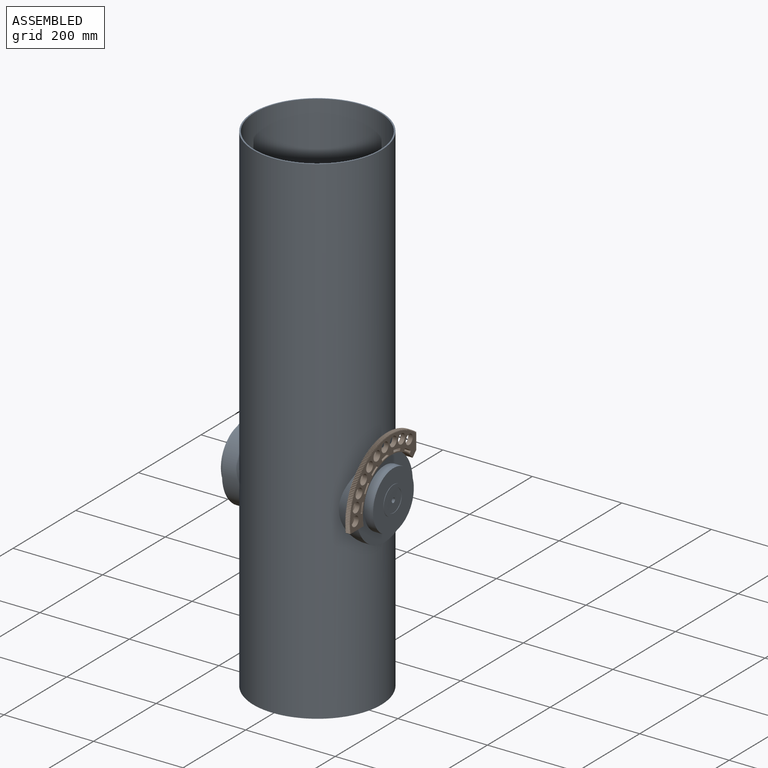
[diagram: assembled view]
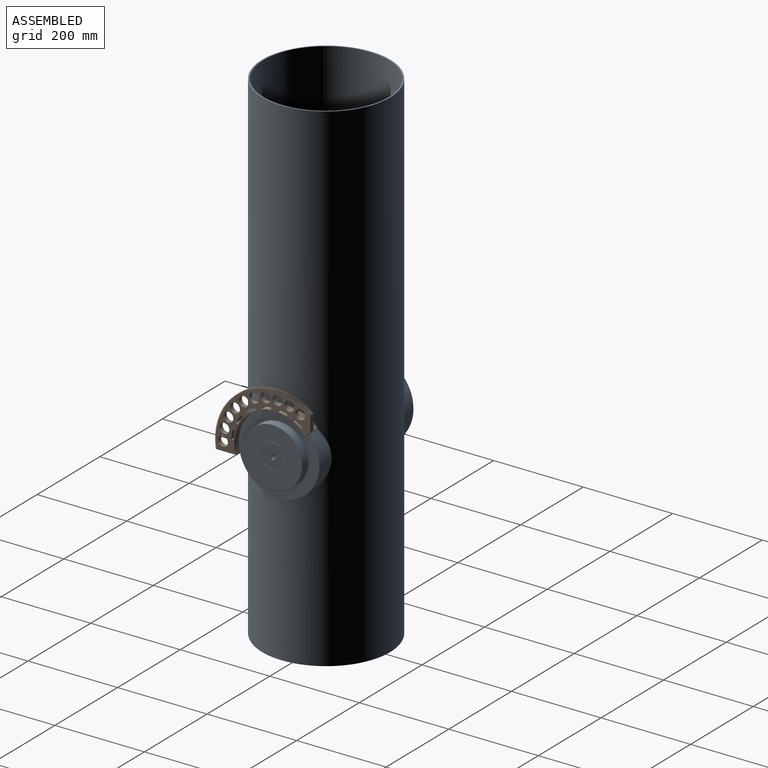
[diagram: assembled view, second angle]
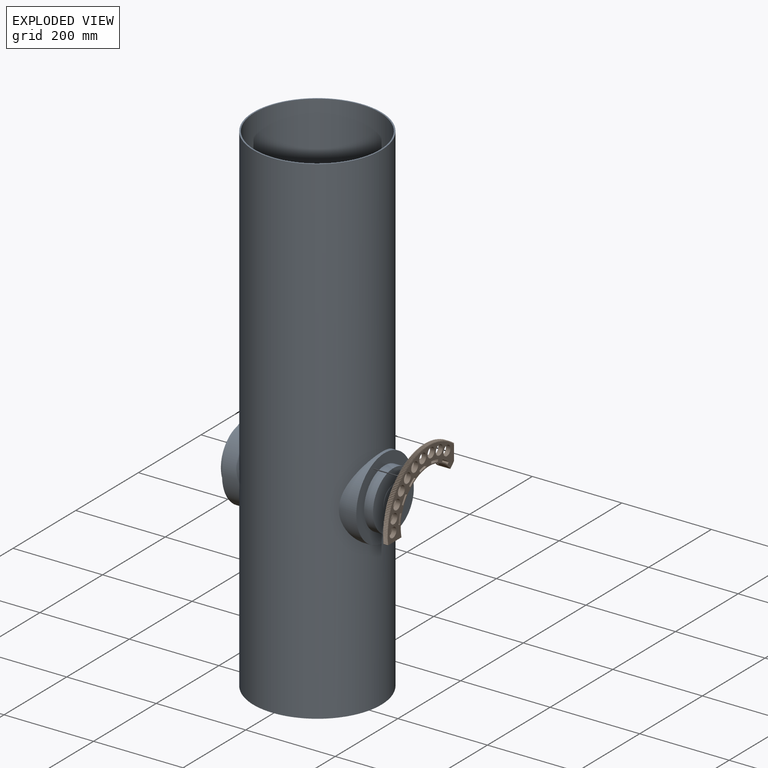
[diagram: exploded view]
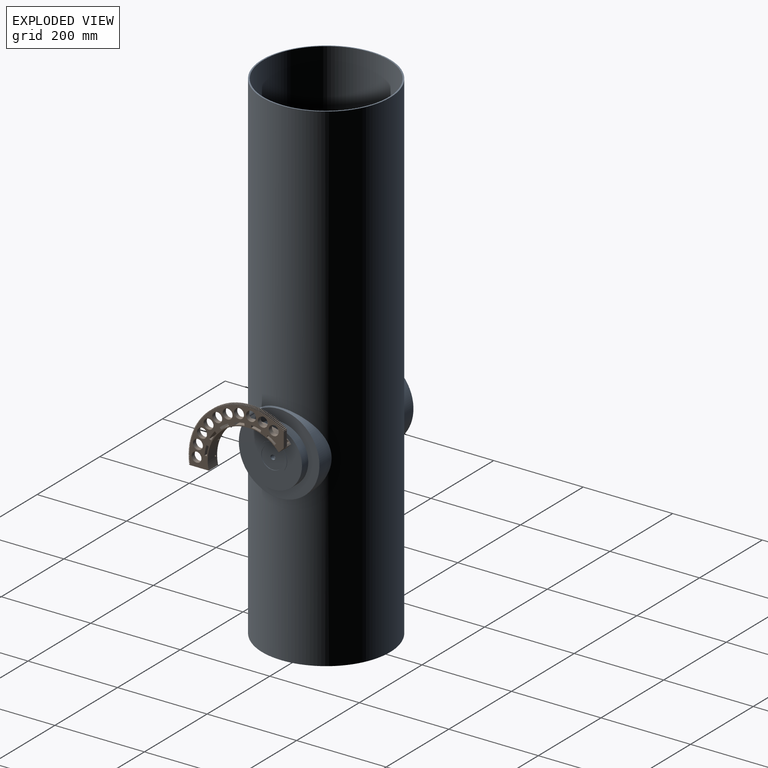
[diagram: exploded view, second angle]
FCSTD DOCUMENT  (FreeCAD 2020.12.13R23076 +3015 (Git))
Label: tubus-kpl
License: All rights reserved
LicenseURL: http://en.wikipedia.org/wiki/All_rights_reserved
objects: Part::FeaturePython×12, App::FeaturePython×8, App::Link×2
note: 11 computed .brp shape members not serialized (recipe doc carries the construction recipe); baked Part::Feature solids carry a one-line shape summary decoded from their .brp
EXTERNAL_REF file=tubus.fcstd obj=Body
EXTERNAL_REF file=wieniec-rury-mod1high.FCStd obj=Body

FEATURE [App::Link] Link  label="tubus"
  LinkPlacement = pos=(19.9999,-8.40128e-05,121) rot=(0,0.707107,0.707107;0rad)
  LinkedObject = -> <external tubus.fcstd>#Body
  Placement = pos=(19.9999,-8.40128e-05,121) rot=(0,0.707107,0.707107;0rad)
  SyncGroupVisibility = false
  _LinkVersion = 1
FEATURE [App::Link] Link001  label="wieniec-rury"
  LinkPlacement = pos=(155,-6.79195e-05,541) rot=(0.57735,0.57735,0.57735;2.0944rad)
  LinkedObject = -> <external wieniec-rury-mod1high.FCStd>#Body
  Placement = pos=(155,-6.79195e-05,541) rot=(0.57735,0.57735,0.57735;2.0944rad)
  SyncGroupVisibility = false
  _LinkVersion = 1
FEATURE [Part::FeaturePython] Parts  # WARN: FeaturePython — macro-defined, semantics opaque (R4)
  Group = -> [Link,Link001]
  GroupMode = 0
  _LinkVersion = 1
FEATURE [Part::FeaturePython] Assembly  label="tubus-kpl"  # WARN: FeaturePython — macro-defined, semantics opaque (R4)
  AutoRelax = true
  BuildShape = 0
  Freeze = true
  Group = -> [Constraints,Elements,Parts]
  Verbose = false
  _LinkVersion = 1
  _SolverType = 1
  _Version = 1
FEATURE [App::FeaturePython] Constraints  # WARN: FeaturePython — macro-defined, semantics opaque (R4)
  Group = -> [Constraint,Constraint001]
  _LinkVersion = 1
  _Version = 1
FEATURE [App::FeaturePython] Elements  # WARN: FeaturePython — macro-defined, semantics opaque (R4)
  Group = -> [_Element,_Element001,_Element002,_Element003,Element,Element001,Element002,Element003,Element004,Element005]
  _LinkVersion = 1
FEATURE [App::FeaturePython] Constraint  label="AxialAlignment"  # WARN: FeaturePython — macro-defined, semantics opaque (R4)
  Angle = 0
  AnglePitch = 0
  AngleRoll = 0
  Disabled = false
  Group = -> [ElementLink,ElementLink001]
  LockAngle = false
  Multiply = false
  _ConstraintType = 36
  _LinkVersion = 1
  _Parent = -> Constraints
FEATURE [App::FeaturePython] ElementLink  label="_Element"  # link proxy (typed FeaturePython)
  LinkTransform = true
  LinkedObject = -> _Element
  _LinkVersion = 1
  _Parent = -> Constraint
FEATURE [Part::FeaturePython] _Element  # link proxy (typed FeaturePython)
  Detach = false
  LinkTransform = true
  LinkedObject = -> Link001 [Pocket007.Face15]
  _LinkVersion = 1
  _Parent = -> Elements
FEATURE [App::FeaturePython] ElementLink001  label="_Element001"  # link proxy (typed FeaturePython)
  LinkTransform = true
  LinkedObject = -> _Element001
  _LinkVersion = 1
  _Parent = -> Constraint
FEATURE [Part::FeaturePython] _Element001  # link proxy (typed FeaturePython)
  Detach = false
  LinkTransform = true
  LinkedObject = -> Link [Pocket003.Face2]
  _LinkVersion = 1
  _Parent = -> Elements
FEATURE [App::FeaturePython] Constraint001  label="AxialAlignment001"  # WARN: FeaturePython — macro-defined, semantics opaque (R4)
  Angle = 0
  AnglePitch = 0
  AngleRoll = 0
  Disabled = false
  Group = -> [ElementLink002,ElementLink003]
  LockAngle = false
  Multiply = false
  _ConstraintType = 36
  _LinkVersion = 1
  _Parent = -> Constraints
FEATURE [App::FeaturePython] ElementLink002  label="_Element002"  # link proxy (typed FeaturePython)
  LinkTransform = true
  LinkedObject = -> _Element002
  _LinkVersion = 1
  _Parent = -> Constraint001
FEATURE [Part::FeaturePython] _Element002  # link proxy (typed FeaturePython)
  Detach = false
  LinkTransform = true
  LinkedObject = -> Link001 [Pocket007.Face6]
  _LinkVersion = 1
  _Parent = -> Elements
FEATURE [App::FeaturePython] ElementLink003  label="_Element003"  # link proxy (typed FeaturePython)
  LinkTransform = true
  LinkedObject = -> _Element003
  _LinkVersion = 1
  _Parent = -> Constraint001
FEATURE [Part::FeaturePython] _Element003  # link proxy (typed FeaturePython)
  Detach = false
  LinkTransform = true
  LinkedObject = -> Link [Pocket003.Face1]
  _LinkVersion = 1
  _Parent = -> Elements
FEATURE [Part::FeaturePython] Element  # link proxy (typed FeaturePython)
  Detach = false
  LinkTransform = true
  LinkedObject = -> Link [Pocket003.Face25]
  _LinkVersion = 1
  _Parent = -> Elements
FEATURE [Part::FeaturePython] Element001  # link proxy (typed FeaturePython)
  Detach = false
  LinkTransform = true
  LinkedObject = -> Link [Pocket003.Face14]
  _LinkVersion = 1
  _Parent = -> Elements
FEATURE [Part::FeaturePython] Element002  # link proxy (typed FeaturePython)
  Detach = false
  LinkTransform = true
  LinkedObject = -> Link [Pocket003.Face19]
  _LinkVersion = 1
  _Parent = -> Elements
FEATURE [Part::FeaturePython] Element003  # link proxy (typed FeaturePython)
  Detach = false
  LinkTransform = true
  LinkedObject = -> Link [Pocket003.Edge40]
  _LinkVersion = 1
  _Parent = -> Elements
FEATURE [Part::FeaturePython] Element004  # link proxy (typed FeaturePython)
  Detach = false
  LinkTransform = true
  LinkedObject = -> Link [Pocket003.Edge34]
  _LinkVersion = 1
  _Parent = -> Elements
FEATURE [Part::FeaturePython] Element005  # link proxy (typed FeaturePython)
  Detach = false
  LinkTransform = true
  LinkedObject = -> Link [Pocket003.Face10]
  _LinkVersion = 1
  _Parent = -> Elements

RESOLVED EXTERNAL PARTS (link-assembly join: the EXTERNAL_REF files above that resolve inside this repo's crawl, each included once):
---- part tubus.fcstd = doc fcstd_58f074dca663 ----
FCSTD DOCUMENT  (FreeCAD 0.19R21911 +2545 (Git))
Label: tubus
License: All rights reserved
LicenseURL: http://en.wikipedia.org/wiki/All_rights_reserved
objects: Sketcher::SketchObject×12, PartDesign::Pad×8, PartDesign::Pocket×4, PartDesign::Plane×3, PartDesign::Body×1
note: 52 computed .brp shape members not serialized (recipe doc carries the construction recipe); baked Part::Feature solids carry a one-line shape summary decoded from their .brp

FEATURE [Sketcher::SketchObject] Sketch
  MapMode = 5
  Support = -> [XY_Plane]
  sketch-geometry (2):
    g0: Circle CenterX=0 CenterY=0 CenterZ=0 NormalX=0 NormalY=0 NormalZ=1 AngleXU=0 Radius=140
    g1: Circle CenterX=0 CenterY=0 CenterZ=0 NormalX=0 NormalY=0 NormalZ=1 AngleXU=0 Radius=143
  constraints (4):
    c: Coincident(g0,g-1)
    c: Coincident(g1,g0)
    c: Radius(g1) = 143
    c: Radius(g0) = 140
FEATURE [PartDesign::Pad] Pad
  AllowMultiFace = false
  ClaimChildren = false
  Length = 1120
  Length2 = 100
  Profile = -> Sketch
  Suppress = false
  Type = 0
FEATURE [PartDesign::Plane] DatumPlane
  AttachmentOffset = pos=(0,0,-20) rot=(0,0,1;0rad)
  Length = 342
  MapMode = 5
  Placement = pos=(0,0,20) rot=(1,0,0;3.14159rad)
  ResizeMode = 0
  Support = -> [Pad]
  Width = 285.712
FEATURE [Sketcher::SketchObject] Sketch001
  ExternalGeometry = -> [Pad]
  MapMode = 5
  Placement = pos=(0,0,20) rot=(1,0,0;3.14159rad)
  Support = -> [DatumPlane]
  sketch-geometry (2):
    g0: Circle CenterX=0 CenterY=0 CenterZ=0 NormalX=0 NormalY=0 NormalZ=1 AngleXU=0 Radius=140
    g1: Circle CenterX=0 CenterY=0 CenterZ=0 NormalX=0 NormalY=0 NormalZ=1 AngleXU=0 Radius=103
  constraints (4):
    c: Coincident(g0,g-1)
    c: Coincident(g1,g0)
    c: Equal(g-3,g0)
    c: Radius(g1) = 103
FEATURE [PartDesign::Pad] Pad001
  AllowMultiFace = false
  BaseFeature = -> Pad
  ClaimChildren = false
  Length = 10
  Length2 = 100
  Profile = -> Sketch001
  Reversed = true
  Suppress = false
  Type = 0
FEATURE [PartDesign::Plane] DatumPlane001
  AttachmentOffset = pos=(0,0,150) rot=(0,0,1;0rad)
  Length = 285.712
  MapMode = 5
  Placement = pos=(150,-1.69365e-11,1.69365e-11) rot=(0.57735,0.57735,0.57735;2.0944rad)
  ResizeMode = 0
  Support = -> [YZ_Plane]
  Width = 1120
FEATURE [Sketcher::SketchObject] Sketch002
  MapMode = 5
  Placement = pos=(150,-1.69365e-11,1.69365e-11) rot=(0.57735,0.57735,0.57735;2.0944rad)
  Support = -> [DatumPlane001]
  sketch-geometry (1):
    g0: Circle CenterX=0 CenterY=420 CenterZ=0 NormalX=0 NormalY=0 NormalZ=1 AngleXU=0 Radius=90
  constraints (3):
    c: PointOnObject(g0,g-2)
    c: DistanceY(g0) = 420
    c: Radius(g0) = 90
FEATURE [PartDesign::Pad] Pad002
  AllowMultiFace = false
  BaseFeature = -> Pad001
  ClaimChildren = false
  Length = 23
  Length2 = 100
  Profile = -> Sketch002
  Suppress = false
  Type = 3
  UpToFace = -> Pad001 [Face1]
FEATURE [Sketcher::SketchObject] Sketch003
  ExternalGeometry = -> [Pad002]
  MapMode = 5
  Placement = pos=(150,-1.68795e-11,1.6929e-11) rot=(0.57735,0.57735,0.57735;2.0944rad)
  Support = -> [Pad002]
  sketch-geometry (1):
    g0: Circle CenterX=0 CenterY=420 CenterZ=0 NormalX=0 NormalY=0 NormalZ=1 AngleXU=0 Radius=65
  constraints (2):
    c: Coincident(g0,g-3)
    c: Radius(g0) = 65
FEATURE [PartDesign::Pad] Pad003
  AllowMultiFace = false
  BaseFeature = -> Pad002
  ClaimChildren = false
  Length = 20
  Length2 = 100
  Profile = -> Sketch003
  Suppress = false
  Type = 0
FEATURE [Sketcher::SketchObject] Sketch004
  ExternalGeometry = -> [Pad003]
  MapMode = 5
  Placement = pos=(170,-1.91284e-11,1.91403e-11) rot=(0.57735,0.57735,0.57735;2.0944rad)
  Support = -> [Pad003]
  sketch-geometry (2):
    g0: Circle CenterX=0 CenterY=420 CenterZ=0 NormalX=0 NormalY=0 NormalZ=1 AngleXU=0 Radius=32
    g1: Circle CenterX=0 CenterY=420 CenterZ=0 NormalX=0 NormalY=0 NormalZ=1 AngleXU=0 Radius=25
  constraints (4):
    c: Coincident(g0,g-3)
    c: Radius(g0) = 32
    c: Coincident(g1,g0)
    c: Radius(g1) = 25
FEATURE [PartDesign::Pad] Pad004
  AllowMultiFace = false
  BaseFeature = -> Pad003
  ClaimChildren = false
  Length = 1
  Length2 = 100
  Profile = -> Sketch004
  Suppress = false
  Type = 0
FEATURE [PartDesign::Plane] DatumPlane002
  AttachmentOffset = pos=(0,0,-150) rot=(0,0,1;0rad)
  Length = 285.712
  MapMode = 5
  Placement = pos=(-150,1.69365e-11,-1.69365e-11) rot=(0.57735,0.57735,0.57735;2.0944rad)
  ResizeMode = 0
  Support = -> [YZ_Plane]
  Width = 1120
FEATURE [Sketcher::SketchObject] Sketch005
  ExternalGeometry = -> [Pad004]
  MapMode = 5
  Placement = pos=(-150,1.69365e-11,-1.69365e-11) rot=(0.57735,0.57735,0.57735;2.0944rad)
  Support = -> [DatumPlane002]
  sketch-geometry (1):
    g0: Circle CenterX=0 CenterY=420 CenterZ=0 NormalX=0 NormalY=0 NormalZ=1 AngleXU=0 Radius=90
  constraints (2):
    c: Coincident(g0,g-3)
    c: Equal(g0,g-3)
FEATURE [PartDesign::Pad] Pad005
  AllowMultiFace = false
  BaseFeature = -> Pad004
  ClaimChildren = false
  Length = 10
  Length2 = 100
  Profile = -> Sketch005
  Suppress = false
  Type = 3
  UpToFace = -> Pad004 [Face1]
FEATURE [Sketcher::SketchObject] Sketch006
  ExternalGeometry = -> [Pad005]
  MapMode = 5
  Placement = pos=(-150,1.68795e-11,-1.6929e-11) rot=(-0.57735,0.57735,0.57735;4.18879rad)
  Support = -> [Pad005]
  sketch-geometry (1):
    g0: Circle CenterX=0 CenterY=420 CenterZ=0 NormalX=0 NormalY=0 NormalZ=1 AngleXU=0 Radius=65
  constraints (2):
    c: Coincident(g0,g-3)
    c: Equal(g-4,g0)
FEATURE [PartDesign::Pad] Pad006
  AllowMultiFace = false
  BaseFeature = -> Pad005
  ClaimChildren = false
  Length = 20
  Length2 = 100
  Profile = -> Sketch006
  Suppress = false
  Type = 0
FEATURE [Sketcher::SketchObject] Sketch007
  ExternalGeometry = -> [Pad006]
  MapMode = 5
  Placement = pos=(-170,1.91539e-11,-1.91845e-11) rot=(-0.57735,0.57735,0.57735;4.18879rad)
  Support = -> [Pad006]
  sketch-geometry (2):
    g0: Circle CenterX=0 CenterY=420 CenterZ=0 NormalX=0 NormalY=0 NormalZ=1 AngleXU=0 Radius=25
    g1: Circle CenterX=0 CenterY=420 CenterZ=0 NormalX=0 NormalY=0 NormalZ=1 AngleXU=0 Radius=32
  constraints (4):
    c: Coincident(g0,g-4)
    c: Coincident(g1,g0)
    c: Equal(g1,g-3)
    c: Equal(g0,g-4)
FEATURE [PartDesign::Pad] Pad007
  AllowMultiFace = false
  BaseFeature = -> Pad006
  ClaimChildren = false
  Length = 1
  Length2 = 100
  Profile = -> Sketch007
  Suppress = false
  Type = 0
FEATURE [Sketcher::SketchObject] Sketch008
  ExternalGeometry = -> [Pad007]
  MapMode = 5
  Placement = pos=(170,-1.91284e-11,1.91403e-11) rot=(0.57735,0.57735,0.57735;2.0944rad)
  Support = -> [Pad007]
  sketch-geometry (1):
    g0: Circle CenterX=0 CenterY=420 CenterZ=0 NormalX=0 NormalY=0 NormalZ=1 AngleXU=0 Radius=5.25
  constraints (2):
    c: Coincident(g0,g-3)
    c: Radius(g0) = 5.25
FEATURE [PartDesign::Pocket] Pocket
  AllowMultiFace = false
  BaseFeature = -> Pad007
  ClaimChildren = false
  Length = 7
  Length2 = 100
  Profile = -> Sketch008
  Suppress = false
  Type = 0
FEATURE [Sketcher::SketchObject] Sketch009
  ExternalGeometry = -> [Pocket]
  MapMode = 5
  Placement = pos=(163,-1.82364e-11,1.83408e-11) rot=(0.57735,0.57735,0.57735;2.0944rad)
  Support = -> [Pocket]
  sketch-geometry (1):
    g0: Circle CenterX=0 CenterY=420 CenterZ=0 NormalX=0 NormalY=0 NormalZ=1 AngleXU=0 Radius=4.25
  constraints (2):
    c: Coincident(g0,g-3)
    c: Radius(g0) = 4.25
FEATURE [PartDesign::Pocket] Pocket001
  AllowMultiFace = false
  BaseFeature = -> Pocket
  ClaimChildren = false
  Length = 15
  Length2 = 100
  Profile = -> Sketch009
  Suppress = false
  Type = 0
FEATURE [Sketcher::SketchObject] Sketch010
  ExternalGeometry = -> [Pocket001]
  MapMode = 5
  Placement = pos=(-170,1.91539e-11,-1.91845e-11) rot=(-0.57735,0.57735,0.57735;4.18879rad)
  Support = -> [Pocket001]
  sketch-geometry (1):
    g0: Circle CenterX=0 CenterY=420 CenterZ=0 NormalX=0 NormalY=0 NormalZ=1 AngleXU=0 Radius=5.25
  constraints (2):
    c: Coincident(g0,g-3)
    c: Radius(g0) = 5.25
FEATURE [PartDesign::Pocket] Pocket002
  AllowMultiFace = false
  BaseFeature = -> Pocket001
  ClaimChildren = false
  Length = 7
  Length2 = 100
  Profile = -> Sketch010
  Suppress = false
  Type = 0
FEATURE [Sketcher::SketchObject] Sketch011
  ExternalGeometry = -> [Pocket002]
  MapMode = 5
  Placement = pos=(-163,1.82364e-11,-1.83408e-11) rot=(-0.57735,0.57735,0.57735;4.18879rad)
  Support = -> [Pocket002]
  sketch-geometry (1):
    g0: Circle CenterX=0 CenterY=420 CenterZ=0 NormalX=0 NormalY=0 NormalZ=1 AngleXU=0 Radius=4.25
  constraints (2):
    c: Coincident(g0,g-3)
    c: Radius(g0) = 4.25
FEATURE [PartDesign::Pocket] Pocket003
  AllowMultiFace = false
  BaseFeature = -> Pocket002
  ClaimChildren = false
  Length = 15
  Length2 = 100
  Profile = -> Sketch011
  Suppress = false
  Type = 0
FEATURE [PartDesign::Body] Body  label="tubus"
  ExportMode = 0
  Group = -> [Sketch,Pad,DatumPlane,Sketch001,Pad001,DatumPlane001,Sketch002,Pad002,Sketch003,Pad003,Sketch004,Pad004,DatumPlane002,Sketch005,Pad005,Sketch006,Pad006,Sketch007,Pad007,Sketch008,Pocket,Sketch009,Pocket001,Sketch010,Pocket002,Sketch011,Pocket003]
  Origin = -> Origin
  SingleSolid = true
  Tip = -> Pocket003
  _ExportChildren = -> [Pad,DatumPlane,Pad001,DatumPlane001,Pad002,Pad003,Pad004,DatumPlane002,Pad005,Pad006,Pad007,Pocket,Pocket001,Pocket002,Pocket003]
  _GroupVersion = 1
---- part wieniec-rury-mod1high.FCStd = doc fcstd_ba545dfb71df ----
FCSTD DOCUMENT  (FreeCAD 2020.10.16R22739 +2665 (Git))
Label: wieniec-rury-mod1high
License: All rights reserved
objects: Sketcher::SketchObject×9, PartDesign::Pocket×8, PartDesign::PolarPattern×3, Part::FeaturePython×1, PartDesign::FeatureBase×1, PartDesign::Plane×1, PartDesign::Groove×1, PartDesign::Mirrored×1, PartDesign::MultiTransform×1, PartDesign::Fillet×1, PartDesign::Body×1
note: 54 computed .brp shape members not serialized (recipe doc carries the construction recipe); baked Part::Feature solids carry a one-line shape summary decoded from their .brp

FEATURE [Part::FeaturePython] involutegear  # WARN: FeaturePython — macro-defined, semantics opaque (R4)
  backlash = 0
  beta = 0
  clearance = 0.25
  double_helix = false
  dw = 264
  head = 0
  height = 30
  module = 1
  numpoints = 6
  pressure_angle = 20
  properties_from_tool = true
  reversed_backlash = false
  shift = 0
  simple = false
  teeth = 264
  transverse_pitch = 3.14159
  undercut = false
FEATURE [PartDesign::FeatureBase] BaseFeature
  BaseFeature = -> involutegear
  NewSolid = false
  Suppress = false
FEATURE [Sketcher::SketchObject] Sketch
  MapMode = 5
  Placement = pos=(0,0,30) rot=(0,0,1;0rad)
  Support = -> [BaseFeature]
  sketch-geometry (1):
    g0: Circle CenterX=0 CenterY=0 CenterZ=0 NormalX=0 NormalY=0 NormalZ=1 AngleXU=0 Radius=90
  constraints (2):
    c: Coincident(g0,g-1)
    c: Diameter(g0) = 180
FEATURE [PartDesign::Pocket] Pocket
  BaseFeature = -> BaseFeature
  ClaimChildren = false
  Length = 5
  Length2 = 100
  NewSolid = false
  Profile = -> Sketch
  Suppress = false
  Type = 1
FEATURE [Sketcher::SketchObject] Sketch001
  MapMode = 5
  Placement = pos=(0,0,0) rot=(1,0,0;1.5708rad)
  Support = -> [XZ_Plane]
  sketch-geometry (2):
    g0: Circle CenterX=0 CenterY=-135 CenterZ=0 NormalX=0 NormalY=0 NormalZ=1 AngleXU=0 Radius=145
    g1: GeomPoint X=0 Y=10 Z=0
  constraints (5):
    c: PointOnObject(g0,g-2)
    c: PointOnObject(g1,g0)
    c: PointOnObject(g1,g-2)
    c: DistanceY(g-1,g1) = 10
    c: Diameter(g0) = 290
FEATURE [PartDesign::Pocket] Pocket001
  BaseFeature = -> Pocket
  ClaimChildren = false
  Length = 5
  Length2 = 100
  Midplane = true
  NewSolid = false
  Profile = -> Sketch001
  Suppress = false
  Type = 1
FEATURE [Sketcher::SketchObject] Sketch002
  MapMode = 5
  Support = -> [XY_Plane]
  sketch-geometry (4):
    g0: LineSegment StartX=-150 StartY=-20 StartZ=0 EndX=150 EndY=-20 EndZ=0
    g1: LineSegment StartX=150 StartY=-20 StartZ=0 EndX=150 EndY=-170 EndZ=0
    g2: LineSegment StartX=150 StartY=-170 StartZ=0 EndX=-150 EndY=-170 EndZ=0
    g3: LineSegment StartX=-150 StartY=-170 StartZ=0 EndX=-150 EndY=-20 EndZ=0
  constraints (11):
    c: Coincident(g0,g1)
    c: Coincident(g1,g2)
    c: Coincident(g2,g3)
    c: Coincident(g3,g0)
    c: Horizontal(g2)
    c: Vertical(g1)
    c: Vertical(g3)
    c: DistanceY(g0,g-1) = 20
    c: Symmetric(g0,g0,g-2)
    c: DistanceX(g2,g2) = 300
    c: DistanceY(g1,g1) = 150
FEATURE [PartDesign::Pocket] Pocket002
  BaseFeature = -> Pocket001
  ClaimChildren = false
  Length = 5
  Length2 = 100
  NewSolid = false
  Profile = -> Sketch002
  Reversed = true
  Suppress = false
  Type = 1
FEATURE [PartDesign::Plane] DatumPlane
  AttachmentOffset = pos=(0,0,5) rot=(0,0,1;0rad)
  Length = 265.999
  MapMode = 5
  Placement = pos=(0,0,5) rot=(0,0,1;0rad)
  ResizeMode = 0
  Support = -> [XY_Plane]
  Width = 222.97
FEATURE [Sketcher::SketchObject] Sketch003
  MapMode = 5
  Placement = pos=(0,0,5) rot=(0,0,1;0rad)
  Support = -> [DatumPlane]
  sketch-geometry (6):
    g0: LineSegment StartX=80 StartY=0 StartZ=0 EndX=80 EndY=2 EndZ=0
    g1: LineSegment StartX=80 StartY=2 StartZ=0 EndX=98 EndY=2 EndZ=0
    g2: LineSegment StartX=98 StartY=2 StartZ=0 EndX=98 EndY=3.5 EndZ=0
    g3: LineSegment StartX=98 StartY=3.5 StartZ=0 EndX=140 EndY=3.5 EndZ=0
    g4: LineSegment StartX=140 StartY=3.5 StartZ=0 EndX=140 EndY=0 EndZ=0
    g5: LineSegment StartX=140 StartY=0 StartZ=0 EndX=80 EndY=0 EndZ=0
  constraints (18):
    c: PointOnObject(g0,g-1)
    c: Vertical(g0)
    c: Coincident(g0,g1)
    c: Horizontal(g1)
    c: Coincident(g1,g2)
    c: Coincident(g2,g3)
    c: Horizontal(g3)
    c: Coincident(g3,g4)
    c: PointOnObject(g4,g-1)
    c: Vertical(g4)
    c: Coincident(g4,g5)
    c: Coincident(g5,g0)
    c: DistanceX(g0) = 80
    c: DistanceX(g1,g1) = 18
    c: Vertical(g2)
    c: DistanceY(g0,g0) = 2
    c: DistanceY(g4,g4) = 3.5
    c: DistanceX(g5,g5) = 60
FEATURE [PartDesign::Groove] Groove
  Angle = 360
  Axis = (1,0,0)
  Base = (0,0,5)
  BaseFeature = -> Pocket002
  ClaimChildren = false
  NewSolid = false
  Profile = -> Sketch003
  ReferenceAxis = -> Sketch003 [H_Axis]
  Reversed = true
  Suppress = false
FEATURE [PartDesign::PolarPattern] PolarPattern
  Angle = 45
  Axis = -> Z_Axis
  CopyShape = false
  NewSolid = false
  Occurrences = 3
  SubTransform = true
  Suppress = false
FEATURE [PartDesign::Mirrored] Mirrored
  CopyShape = false
  MirrorPlane = -> YZ_Plane
  NewSolid = false
  SubTransform = true
  Suppress = false
FEATURE [PartDesign::MultiTransform] MultiTransform
  BaseFeature = -> Groove
  CopyShape = false
  NewSolid = false
  OriginalSubs = -> [Groove]
  Originals = -> [Groove]
  SubTransform = true
  Suppress = false
  Transformations = -> [PolarPattern,Mirrored]
FEATURE [Sketcher::SketchObject] Sketch004
  MapMode = 5
  Support = -> [XY_Plane]
  sketch-geometry (4):
    g0: LineSegment StartX=160 StartY=150 StartZ=0 EndX=10 EndY=0 EndZ=0
    g1: LineSegment StartX=10 StartY=0 StartZ=0 EndX=10 EndY=-30 EndZ=0
    g2: LineSegment StartX=10 StartY=-30 StartZ=0 EndX=160 EndY=-30 EndZ=0
    g3: LineSegment StartX=160 StartY=-30 StartZ=0 EndX=160 EndY=150 EndZ=0
  constraints (12):
    c: PointOnObject(g0,g-1)
    c: Coincident(g0,g1)
    c: Vertical(g1)
    c: Coincident(g1,g2)
    c: Horizontal(g2)
    c: Coincident(g2,g3)
    c: Coincident(g3,g0)
    c: Angle(g-1,g0) = 0.785398
    c: DistanceX(g0) = 10
    c: Vertical(g3)
    c: DistanceY(g2) = -30
    c: DistanceX(g2,g2) = 150
FEATURE [PartDesign::Pocket] Pocket003
  BaseFeature = -> MultiTransform
  ClaimChildren = false
  Length = 5
  Length2 = 100
  NewSolid = false
  Profile = -> Sketch004
  Reversed = true
  Suppress = false
  Type = 1
FEATURE [Sketcher::SketchObject] Sketch005
  MapMode = 5
  Support = -> [XY_Plane]
  sketch-geometry (5):
    g0: LineSegment StartX=-92 StartY=8 StartZ=0 EndX=-97 EndY=8 EndZ=0
    g1: ArcOfCircle CenterX=0 CenterY=0 CenterZ=0 NormalX=0 NormalY=0 NormalZ=1 AngleXU=0 Radius=92.3472 StartAngle=2.82743 EndAngle=3.05485
    g2: ArcOfCircle CenterX=0 CenterY=0 CenterZ=0 NormalX=0 NormalY=0 NormalZ=1 AngleXU=0 Radius=97.3293 StartAngle=2.82743 EndAngle=3.0593
    g3: LineSegment StartX=-92.5657 StartY=30.0764 StartZ=0 EndX=-87.8274 EndY=28.5368 EndZ=0
    g4: LineSegment [constr] StartX=-87.8274 StartY=28.5368 StartZ=0 EndX=0 EndY=0 EndZ=0
  constraints (14):
    c: Horizontal(g0)
    c: Coincident(g1,g-1)
    c: Coincident(g1,g0)
    c: Coincident(g2,g1)
    c: Coincident(g2,g0)
    c: Coincident(g3,g2)
    c: Coincident(g3,g1)
    c: DistanceX(g0) = -92
    c: DistanceY(g0) = 8
    c: DistanceX(g0,g0) = 5
    c: Angle(g3,g0) = 0.314159
    c: Coincident(g4,g1)
    c: Coincident(g4,g1)
    c: Parallel(g4,g3)
FEATURE [PartDesign::Pocket] Pocket004
  BaseFeature = -> Pocket003
  ClaimChildren = false
  Length = 5
  Length2 = 100
  NewSolid = false
  Profile = -> Sketch005
  Reversed = true
  Suppress = false
  Type = 1
FEATURE [PartDesign::PolarPattern] PolarPattern001
  Angle = 112
  Axis = -> Z_Axis
  BaseFeature = -> Pocket004
  CopyShape = false
  NewSolid = false
  Occurrences = 6
  OriginalSubs = -> [Pocket004]
  Originals = -> [Pocket004]
  Reversed = true
  SubTransform = true
  Suppress = false
FEATURE [Sketcher::SketchObject] Sketch006
  MapMode = 5
  Support = -> [XY_Plane]
  sketch-geometry (2):
    g0: Circle CenterX=0 CenterY=0 CenterZ=0 NormalX=0 NormalY=0 NormalZ=1 AngleXU=0 Radius=100
    g1: Circle CenterX=0 CenterY=0 CenterZ=0 NormalX=0 NormalY=0 NormalZ=1 AngleXU=0 Radius=150
  constraints (4):
    c: Coincident(g0,g-1)
    c: Coincident(g1,g0)
    c: Diameter(g0) = 200
    c: Diameter(g1) = 300
FEATURE [PartDesign::Pocket] Pocket005
  BaseFeature = -> PolarPattern001
  ClaimChildren = false
  Length = 20
  Length2 = 100
  NewSolid = false
  Profile = -> Sketch006
  Reversed = true
  Suppress = false
  Type = 0
FEATURE [PartDesign::Fillet] Fillet
  Base = -> Pocket005 [Edge44]
  BaseFeature = -> Pocket005
  NewSolid = false
  Radius = 3
  SupportTransform = true
  Suppress = false
FEATURE [Sketcher::SketchObject] Sketch007
  MapMode = 5
  Support = -> [XY_Plane]
  sketch-geometry (1):
    g0: Circle CenterX=-115 CenterY=0 CenterZ=0 NormalX=0 NormalY=0 NormalZ=1 AngleXU=0 Radius=11
  constraints (3):
    c: PointOnObject(g0,g-1)
    c: DistanceX(g0) = -115
    c: Diameter(g0) = 22
FEATURE [PartDesign::Pocket] Pocket006
  BaseFeature = -> Fillet
  ClaimChildren = false
  Length = 5
  Length2 = 100
  NewSolid = false
  Profile = -> Sketch007
  Reversed = true
  Suppress = false
  Type = 1
FEATURE [PartDesign::PolarPattern] PolarPattern002
  Angle = 120
  Axis = -> Sketch007 [N_Axis]
  BaseFeature = -> Pocket006
  CopyShape = false
  NewSolid = false
  Occurrences = 10
  OriginalSubs = -> [Pocket006]
  Originals = -> [Pocket006]
  Reversed = true
  SubTransform = true
  Suppress = false
FEATURE [Sketcher::SketchObject] Sketch008
  MapMode = 5
  Support = -> [XY_Plane]
  sketch-geometry (4):
    g0: LineSegment StartX=80 StartY=120 StartZ=0 EndX=160 EndY=120 EndZ=0
    g1: LineSegment StartX=160 StartY=120 StartZ=0 EndX=160 EndY=0 EndZ=0
    g2: LineSegment StartX=160 StartY=0 StartZ=0 EndX=80 EndY=0 EndZ=0
    g3: LineSegment StartX=80 StartY=0 StartZ=0 EndX=80 EndY=120 EndZ=0
  constraints (12):
    c: Coincident(g0,g1)
    c: Coincident(g1,g2)
    c: Coincident(g2,g3)
    c: Coincident(g3,g0)
    c: Horizontal(g0)
    c: Horizontal(g2)
    c: Vertical(g1)
    c: Vertical(g3)
    c: PointOnObject(g1,g-1)
    c: DistanceX(g2) = 80
    c: DistanceY(g1,g1) = 120
    c: DistanceX(g2,g2) = 80
FEATURE [PartDesign::Pocket] Pocket007
  BaseFeature = -> PolarPattern002
  ClaimChildren = false
  Length = 5
  Length2 = 100
  NewSolid = false
  Profile = -> Sketch008
  Reversed = true
  Suppress = false
  Type = 1
FEATURE [PartDesign::Body] Body  label="wieniec-rury"
  BaseFeature = -> involutegear
  ExportMode = 0
  Group = -> [BaseFeature,Sketch,Pocket,Sketch001,Pocket001,Sketch002,Pocket002,DatumPlane,Sketch003,Groove,MultiTransform,PolarPattern,Mirrored,Sketch004,Pocket003,Sketch005,Pocket004,PolarPattern001,Sketch006,Pocket005,Fillet,Sketch007,Pocket006,PolarPattern002,Sketch008,Pocket007]
  Origin = -> Origin
  Tip = -> Pocket007
  _ExportChildren = -> [BaseFeature,Pocket,Pocket001,Pocket002,DatumPlane,Groove,MultiTransform,Pocket003,Pocket004,PolarPattern001,Pocket005,Fillet,Pocket006,PolarPattern002,Pocket007]
  _GroupVersion = 1
